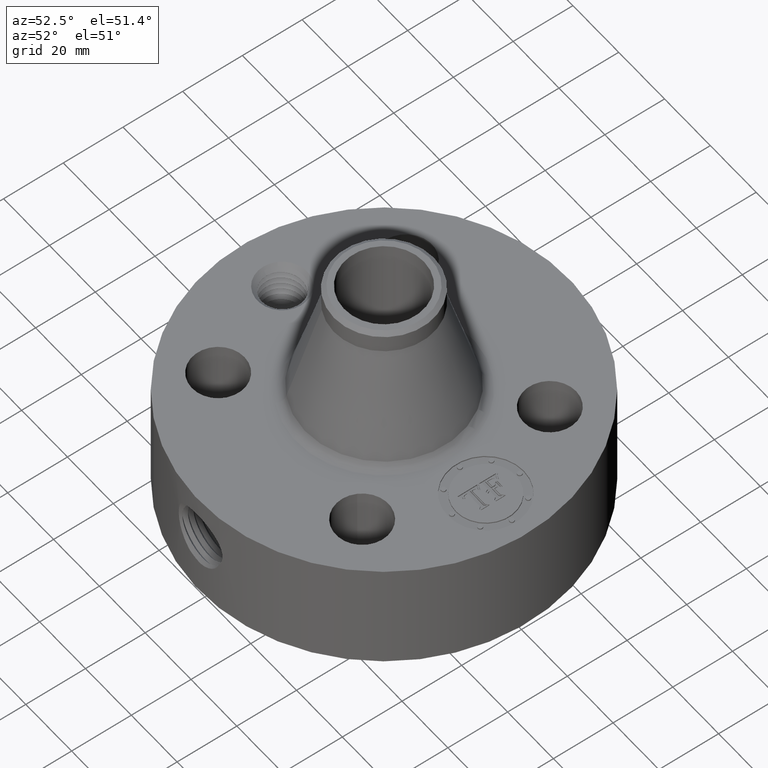
[diagram: clean part render]
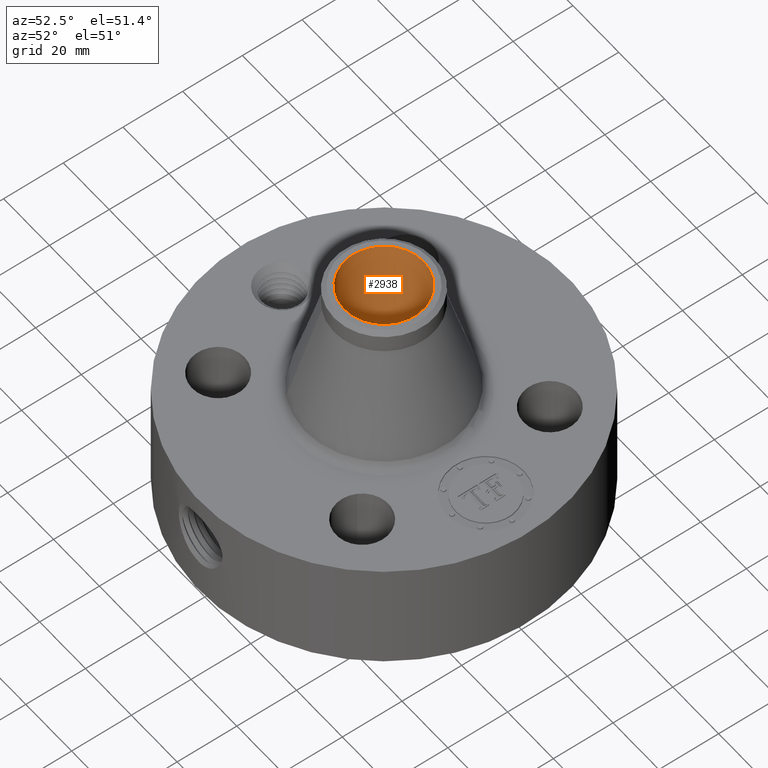
[diagram: same view with one face highlighted and labeled with its STEP entity id]
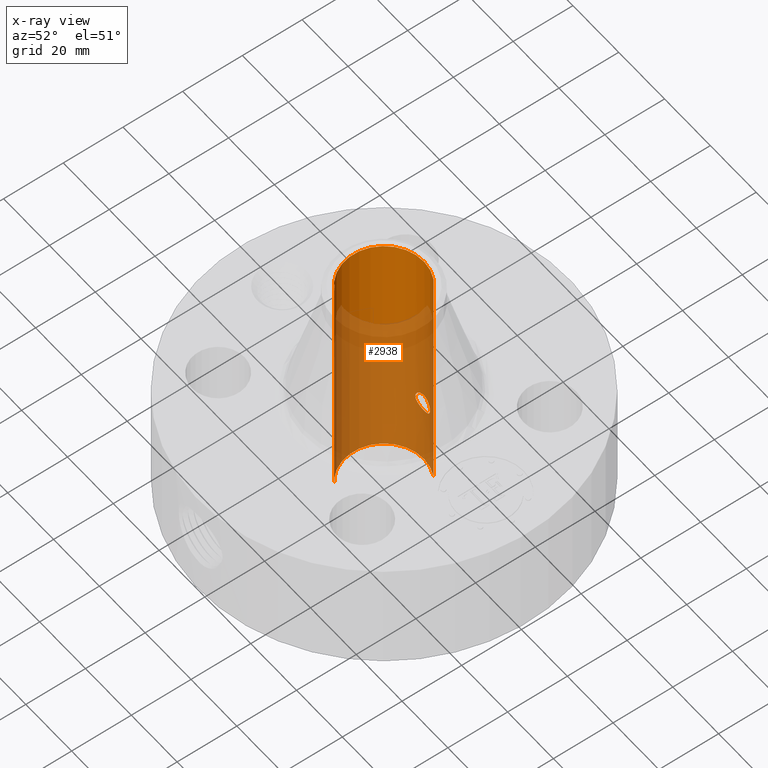
[diagram: x-ray of the same camera — body ghosted, the highlighted face saturated]
A machine part, auxiliary view. The second image highlights one B-rep face of the part: STEP entity #2938.
The next image is the same camera in x-ray: the body ghosted, the highlighted face saturated — about 67% of this face is hidden behind the body in this view.
In plain terms, the highlighted cylindrical surface (partial cylindrical patch) has radius 13.3223 mm, axis along (0, 0, -1).
Its self-contained STEP definition (entity closure, byte-faithful):
#2080=AXIS2_PLACEMENT_3D('Circle Axis2P3D',#2078,#2079,$) ;
#2815=AXIS2_PLACEMENT_3D('Cylinder Axis2P3D',#2812,#2813,#2814) ;
#2887=AXIS2_PLACEMENT_3D('Circle Axis2P3D',#2885,#2886,$) ;
#2073=CARTESIAN_POINT('Vertex',(0.251458694999,0.460292053713,2.79741234551E-016)) ;
#2075=CARTESIAN_POINT('Vertex',(-0.251458694999,-0.460292053713,2.79741234551E-016)) ;
#2078=CARTESIAN_POINT('Axis2P3D Location',(0.,0.,0.)) ;
#2812=CARTESIAN_POINT('Axis2P3D Location',(0.,0.,1.65500000001)) ;
#2821=CARTESIAN_POINT('Vertex',(0.251458694999,0.460292053713,3.31000000001)) ;
#2823=CARTESIAN_POINT('Vertex',(-0.251458694999,-0.460292053713,3.31000000001)) ;
#2826=CARTESIAN_POINT('Line Origine',(0.251458694999,0.460292053713,1.65500000001)) ;
#2831=CARTESIAN_POINT('Line Origine',(-0.251458694999,-0.460292053713,1.65500000001)) ;
#2885=CARTESIAN_POINT('Axis2P3D Location',(0.,0.,3.31000000001)) ;
#2897=CARTESIAN_POINT('Control Point',(0.109697820237,0.512900222497,0.99992819233)) ;
#2898=CARTESIAN_POINT('Control Point',(0.103067995137,0.514318192952,1.01206400577)) ;
#2899=CARTESIAN_POINT('Control Point',(0.094771969539,0.5159805034,1.02326099615)) ;
#2900=CARTESIAN_POINT('Control Point',(0.0849803702624,0.51773919703,1.03323331604)) ;
#2901=CARTESIAN_POINT('Control Point',(0.0538199881039,0.522434964879,1.05721526035)) ;
#2902=CARTESIAN_POINT('Control Point',(0.0149493305918,0.525251537098,1.06806916629)) ;
#2903=CARTESIAN_POINT('Control Point',(-0.0116326804235,0.525346375616,1.06841720931)) ;
#2904=CARTESIAN_POINT('Control Point',(-0.0508447925168,0.522756079785,1.05854858797)) ;
#2905=CARTESIAN_POINT('Control Point',(-0.0826523564118,0.518124437442,1.03531611328)) ;
#2906=CARTESIAN_POINT('Control Point',(-0.0927261783318,0.516359982354,1.02554648395)) ;
#2907=CARTESIAN_POINT('Control Point',(-0.117112916643,0.511563161852,0.994230956013)) ;
#2908=CARTESIAN_POINT('Control Point',(-0.128164416094,0.508593381511,0.954995906295)) ;
#2909=CARTESIAN_POINT('Control Point',(-0.128487390484,0.508500379864,0.928038397614)) ;
#2910=CARTESIAN_POINT('Control Point',(-0.121927405504,0.510284589305,0.902457913351)) ;
#2911=CARTESIAN_POINT('Control Point',(-0.109697820237,0.512900222497,0.880071807678)) ;
#2912=CARTESIAN_POINT('Vertex',(0.109697820237,0.512900222497,0.99992819233)) ;
#2914=CARTESIAN_POINT('Vertex',(-0.109697820237,0.512900222497,0.880071807678)) ;
#2918=CARTESIAN_POINT('Control Point',(-0.109697820237,0.512900222497,0.880071807678)) ;
#2919=CARTESIAN_POINT('Control Point',(-0.103067995136,0.514318192952,0.867935994235)) ;
#2920=CARTESIAN_POINT('Control Point',(-0.0947719695379,0.5159805034,0.856739003858)) ;
#2921=CARTESIAN_POINT('Control Point',(-0.0849803702641,0.51773919703,0.846766683972)) ;
#2922=CARTESIAN_POINT('Control Point',(-0.0538199881048,0.522434964879,0.822784739659)) ;
#2923=CARTESIAN_POINT('Control Point',(-0.0149493305915,0.525251537098,0.811930833716)) ;
#2924=CARTESIAN_POINT('Control Point',(0.0116326804229,0.525346375616,0.811582790697)) ;
#2925=CARTESIAN_POINT('Control Point',(0.0508447925138,0.522756079785,0.821451412037)) ;
#2926=CARTESIAN_POINT('Control Point',(0.0826523564077,0.518124437442,0.844683886727)) ;
#2927=CARTESIAN_POINT('Control Point',(0.0927261783346,0.516359982354,0.854453516061)) ;
#2928=CARTESIAN_POINT('Control Point',(0.117112916644,0.511563161852,0.885769043997)) ;
#2929=CARTESIAN_POINT('Control Point',(0.128164416093,0.508593381511,0.925004093714)) ;
#2930=CARTESIAN_POINT('Control Point',(0.128487390484,0.508500379864,0.951961602393)) ;
#2931=CARTESIAN_POINT('Control Point',(0.121927405504,0.510284589305,0.977542086657)) ;
#2932=CARTESIAN_POINT('Control Point',(0.109697820237,0.512900222497,0.99992819233)) ;
#2079=DIRECTION('Axis2P3D Direction',(0.,0.,-0.0393700787402)) ;
#2813=DIRECTION('Axis2P3D Direction',(0.,0.,-0.0393700787402)) ;
#2814=DIRECTION('Axis2P3D XDirection',(-0.0188750212049,-0.0345504945626,0.)) ;
#2827=DIRECTION('Vector Direction',(0.,0.,-0.0393700787402)) ;
#2832=DIRECTION('Vector Direction',(0.,0.,-0.0393700787402)) ;
#2886=DIRECTION('Axis2P3D Direction',(0.,0.,-0.0393700787402)) ;
#2828=VECTOR('Line Direction',#2827,0.0393700787402) ;
#2833=VECTOR('Line Direction',#2832,0.0393700787402) ;
#2891=ORIENTED_EDGE('',*,*,#2889,.F.) ;
#2892=ORIENTED_EDGE('',*,*,#2835,.T.) ;
#2893=ORIENTED_EDGE('',*,*,#2082,.T.) ;
#2894=ORIENTED_EDGE('',*,*,#2830,.F.) ;
#2935=ORIENTED_EDGE('',*,*,#2916,.F.) ;
#2936=ORIENTED_EDGE('',*,*,#2933,.F.) ;
#2937=FACE_BOUND('',#2934,.T.) ;
#2938=ADVANCED_FACE('PartBody',(#2895,#2937),#2816,.F.) ;
#2896=B_SPLINE_CURVE_WITH_KNOTS('',5,(#2897,#2898,#2899,#2900,#2901,#2902,#2903,#2904,#2905,#2906,#2907,#2908,#2909,#2910,#2911),.UNSPECIFIED.,.F.,.U.,(6,3,3,3,6),(0.,2.49672561369,7.04499234133,9.55164643766,14.1571855462),.UNSPECIFIED.) ;
#2917=B_SPLINE_CURVE_WITH_KNOTS('',5,(#2918,#2919,#2920,#2921,#2922,#2923,#2924,#2925,#2926,#2927,#2928,#2929,#2930,#2931,#2932),.UNSPECIFIED.,.F.,.U.,(6,3,3,3,6),(0.,2.49672561386,7.04499234155,9.55164643744,14.157185546),.UNSPECIFIED.) ;
#2081=CIRCLE('generated circle',#2080,0.524500000002) ;
#2888=CIRCLE('generated circle',#2887,0.524500000002) ;
#2816=CYLINDRICAL_SURFACE('generated cylinder',#2815,0.524500000002) ;
#2082=EDGE_CURVE('',#2076,#2074,#2081,.T.) ;
#2830=EDGE_CURVE('',#2822,#2074,#2829,.T.) ;
#2835=EDGE_CURVE('',#2824,#2076,#2834,.T.) ;
#2889=EDGE_CURVE('',#2824,#2822,#2888,.T.) ;
#2916=EDGE_CURVE('',#2913,#2915,#2896,.T.) ;
#2933=EDGE_CURVE('',#2915,#2913,#2917,.T.) ;
#2890=EDGE_LOOP('',(#2891,#2892,#2893,#2894)) ;
#2934=EDGE_LOOP('',(#2935,#2936)) ;
#2895=FACE_OUTER_BOUND('',#2890,.T.) ;
#2829=LINE('Line',#2826,#2828) ;
#2834=LINE('Line',#2831,#2833) ;
#2074=VERTEX_POINT('',#2073) ;
#2076=VERTEX_POINT('',#2075) ;
#2822=VERTEX_POINT('',#2821) ;
#2824=VERTEX_POINT('',#2823) ;
#2913=VERTEX_POINT('',#2912) ;
#2915=VERTEX_POINT('',#2914) ;